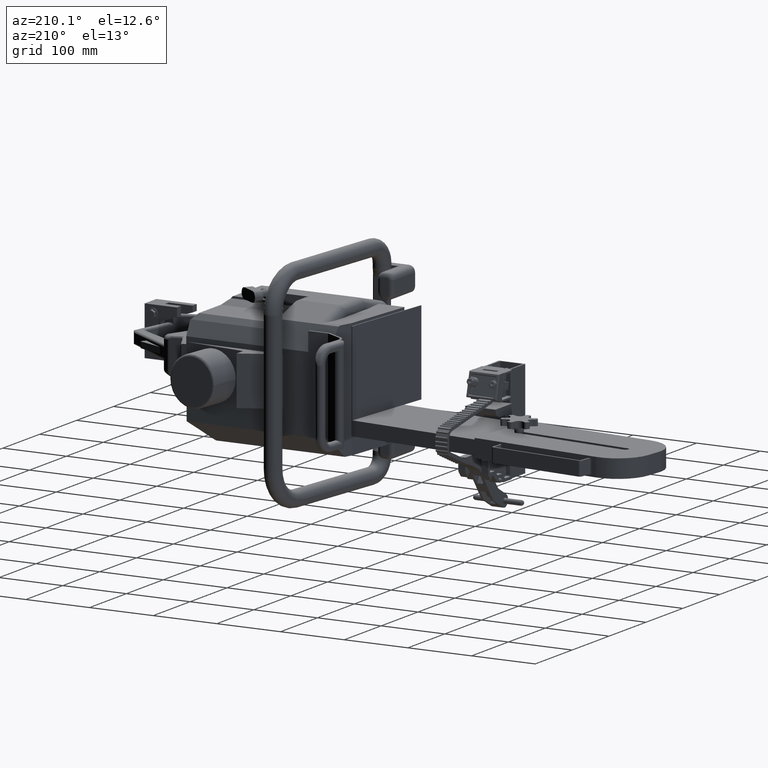
[diagram: clean part render]
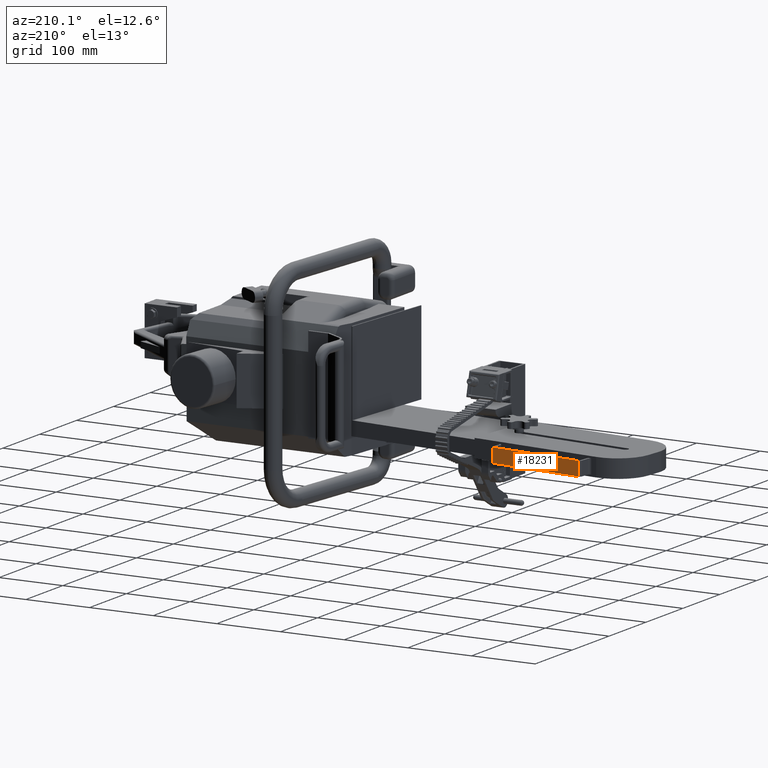
[diagram: same view with one face highlighted and labeled with its STEP entity id]
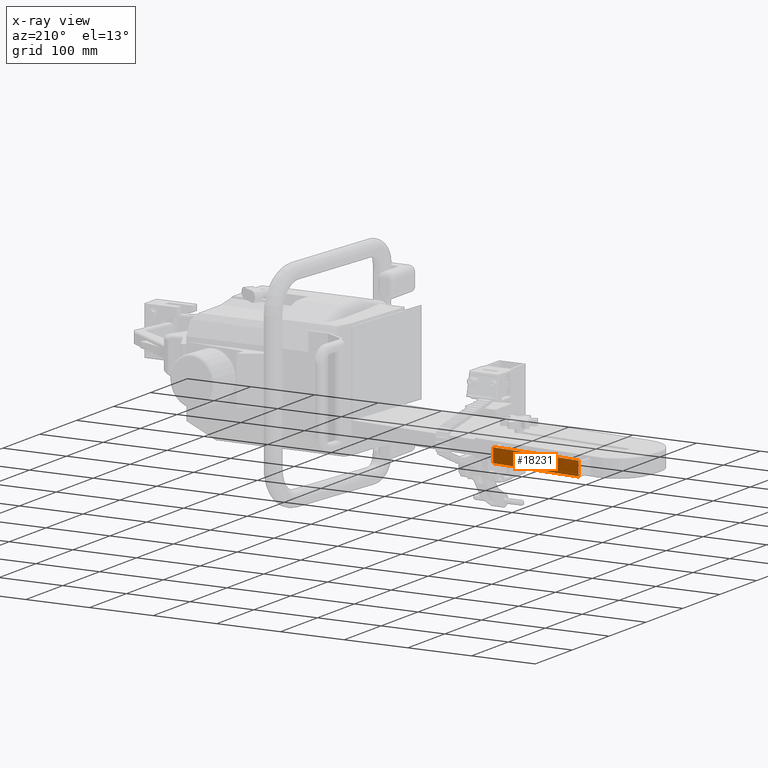
[diagram: x-ray of the same camera — body ghosted, the highlighted face saturated]
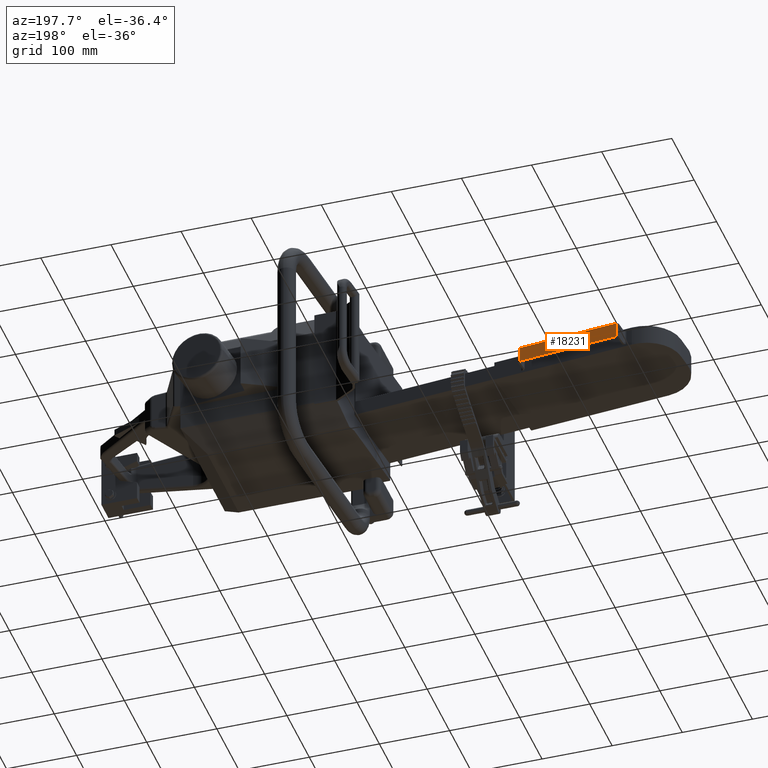
[diagram: same view with one face highlighted and labeled with its STEP entity id]
A machine part, auxiliary view. The second image highlights one B-rep face of the part: STEP entity #18231.
The next image is the same camera in x-ray: the body ghosted, the highlighted face saturated — about 0% of this face is hidden behind the body in this view.
A second angle (auxiliary view) of the same face is appended — the face is thin or edge-on in the first view.
In plain terms, the highlighted planar face has unit normal (0.0969, 0.9953, 0).
Its self-contained STEP definition (entity closure, byte-faithful):
#4750 = LINE ( 'NONE', #5645, #4751 ) ;
#4751 = VECTOR ( 'NONE', #5646, 39.37007874015748100 ) ;
#4790 = LINE ( 'NONE', #5760, #4793 ) ;
#4793 = VECTOR ( 'NONE', #5761, 39.37007874015748100 ) ;
#4794 = LINE ( 'NONE', #5774, #4817 ) ;
#4817 = VECTOR ( 'NONE', #5783, 39.37007874015748100 ) ;
#4821 = LINE ( 'NONE', #5786, #4822 ) ;
#4822 = VECTOR ( 'NONE', #5787, 39.37007874015748100 ) ;
#5645 = CARTESIAN_POINT ( 'NONE',  ( -9.432238849066573400, 9.186494692452964000, 0.4375000000000000000 ) ) ;
#5646 = DIRECTION ( 'NONE',  ( 0.9952953723393651600, -0.09688716013922950300, 0.0000000000000000000 ) ) ;
#5760 = CARTESIAN_POINT ( 'NONE',  ( -9.432238849066573400, 9.186494692452964000, -0.4375000000000000000 ) ) ;
#5761 = DIRECTION ( 'NONE',  ( 0.9952953723393651600, -0.09688716013922950300, 0.0000000000000000000 ) ) ;
#5774 = CARTESIAN_POINT ( 'NONE',  ( -9.432238849066573400, 9.186494692452964000, 0.4375000000000000000 ) ) ;
#5783 = DIRECTION ( 'NONE',  ( -0.0000000000000000000, -0.0000000000000000000, -1.000000000000000000 ) ) ;
#5786 = CARTESIAN_POINT ( 'NONE',  ( -3.833867946533016100, 8.641520533799258900, 0.4375000000000000000 ) ) ;
#5787 = DIRECTION ( 'NONE',  ( -0.0000000000000000000, -0.0000000000000000000, -1.000000000000000000 ) ) ;
#12896 = VERTEX_POINT ( 'NONE', #53338 ) ;
#12897 = VERTEX_POINT ( 'NONE', #53339 ) ;
#12910 = VERTEX_POINT ( 'NONE', #53352 ) ;
#12911 = VERTEX_POINT ( 'NONE', #53353 ) ;
#13446 = EDGE_LOOP ( 'NONE', ( #26059, #26061, #26063, #26065 ) ) ;
#18231 = ADVANCED_FACE ( 'NONE', ( #48041 ), #62992, .T. ) ;
#20507 = EDGE_CURVE ( 'NONE', #12897, #12896, #4750, .T. ) ;
#20538 = EDGE_CURVE ( 'NONE', #12910, #12911, #4790, .T. ) ;
#20549 = EDGE_CURVE ( 'NONE', #12897, #12910, #4794, .T. ) ;
#20551 = EDGE_CURVE ( 'NONE', #12896, #12911, #4821, .T. ) ;
#26059 = ORIENTED_EDGE ( 'NONE', *, *, #20538, .F. ) ;
#26061 = ORIENTED_EDGE ( 'NONE', *, *, #20549, .F. ) ;
#26063 = ORIENTED_EDGE ( 'NONE', *, *, #20507, .T. ) ;
#26065 = ORIENTED_EDGE ( 'NONE', *, *, #20551, .T. ) ;
#48041 = FACE_OUTER_BOUND ( 'NONE', #13446, .T. ) ;
#53338 = CARTESIAN_POINT ( 'NONE',  ( -3.833867946533016100, 8.641520533799258900, 0.4375000000000000000 ) ) ;
#53339 = CARTESIAN_POINT ( 'NONE',  ( -9.432238849066573400, 9.186494692452964000, 0.4375000000000000000 ) ) ;
#53352 = CARTESIAN_POINT ( 'NONE',  ( -9.432238849066573400, 9.186494692452964000, -0.4375000000000000000 ) ) ;
#53353 = CARTESIAN_POINT ( 'NONE',  ( -3.833867946533016100, 8.641520533799258900, -0.4375000000000000000 ) ) ;
#62990 = CARTESIAN_POINT ( 'NONE',  ( -9.432238849066573400, 9.186494692452964000, 0.4375000000000000000 ) ) ;
#62992 = PLANE ( 'NONE',  #63648 ) ;
#62995 = DIRECTION ( 'NONE',  ( 0.09688716013922948900, 0.9952953723393651600, -0.0000000000000000000 ) ) ;
#62996 = DIRECTION ( 'NONE',  ( -0.9952953723393651600, 0.09688716013922948900, 0.0000000000000000000 ) ) ;
#63648 = AXIS2_PLACEMENT_3D ( 'NONE', #62990, #62995, #62996 ) ;